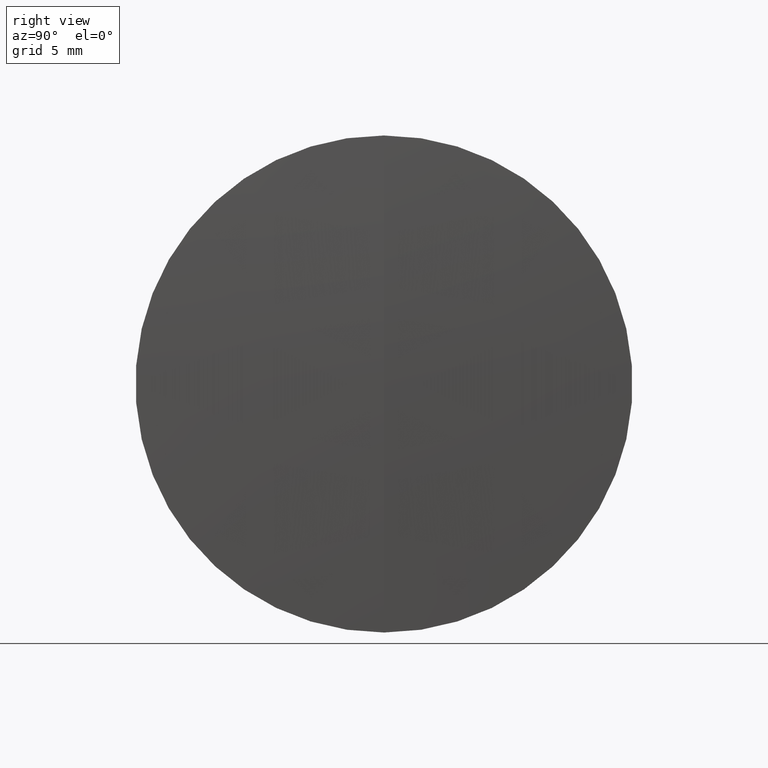
[diagram: clean part render]
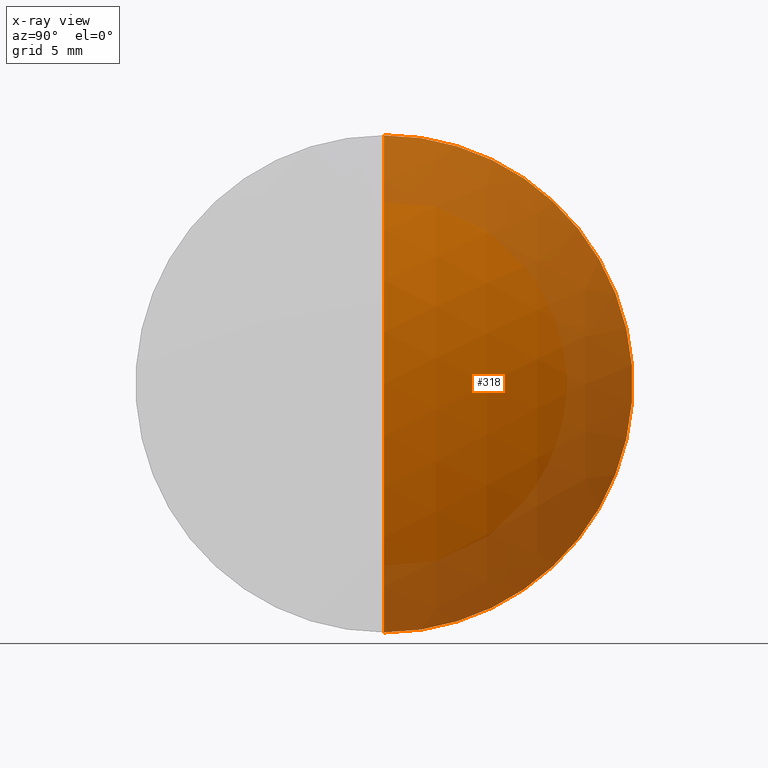
[diagram: x-ray — body ghosted, one internal face saturated and labeled with its STEP entity id]
A machine part, right view, then the same camera in x-ray: the body is ghosted and one INTERNAL B-rep face — a face not visible from any outside direction — is saturated and labeled: STEP entity #318.
In plain terms, the highlighted spherical surface has radius 25.9 mm.
Its self-contained STEP definition (entity closure, byte-faithful):
#3 = DIRECTION ( 'NONE',  ( 0.0000000000000000000, 0.0000000000000000000, 1.000000000000000000 ) ) ;
#18 = FACE_OUTER_BOUND ( 'NONE', #159, .T. ) ;
#30 = VERTEX_POINT ( 'NONE', #227 ) ;
#33 = CIRCLE ( 'NONE', #187, 25.90000000000000900 ) ;
#61 = AXIS2_PLACEMENT_3D ( 'NONE', #114, #271, #301 ) ;
#68 = CARTESIAN_POINT ( 'NONE',  ( 211.0958458084194300, 0.0000000000000000000, -3.185954776904472300E-015 ) ) ;
#75 = CIRCLE ( 'NONE', #293, 12.69999999999999600 ) ;
#82 = EDGE_CURVE ( 'NONE', #169, #346, #33, .T. ) ;
#91 = CARTESIAN_POINT ( 'NONE',  ( 211.0958458084194300, 0.0000000000000000000, -3.185954776904472300E-015 ) ) ;
#110 = CIRCLE ( 'NONE', #61, 25.90000000000000900 ) ;
#114 = CARTESIAN_POINT ( 'NONE',  ( 211.0958458084194300, 0.0000000000000000000, -3.185954776904472300E-015 ) ) ;
#122 = ORIENTED_EDGE ( 'NONE', *, *, #179, .F. ) ;
#155 = EDGE_CURVE ( 'NONE', #30, #346, #75, .T. ) ;
#159 = EDGE_LOOP ( 'NONE', ( #122, #264, #253 ) ) ;
#169 = VERTEX_POINT ( 'NONE', #280 ) ;
#179 = EDGE_CURVE ( 'NONE', #169, #30, #110, .T. ) ;
#187 = AXIS2_PLACEMENT_3D ( 'NONE', #68, #258, #251 ) ;
#197 = CARTESIAN_POINT ( 'NONE',  ( 233.6683955093282600, 0.0000000000000000000, 0.0000000000000000000 ) ) ;
#200 = SPHERICAL_SURFACE ( 'NONE', #206, 25.90000000000000900 ) ;
#206 = AXIS2_PLACEMENT_3D ( 'NONE', #91, #325, #3 ) ;
#227 = CARTESIAN_POINT ( 'NONE',  ( 233.6683955093282600, 0.0000000000000000000, 12.69999999999999600 ) ) ;
#251 = DIRECTION ( 'NONE',  ( 0.0000000000000000000, -1.224646799147353200E-016, 1.000000000000000000 ) ) ;
#253 = ORIENTED_EDGE ( 'NONE', *, *, #155, .F. ) ;
#258 = DIRECTION ( 'NONE',  ( -0.0000000000000000000, 1.000000000000000000, 1.224646799147353200E-016 ) ) ;
#264 = ORIENTED_EDGE ( 'NONE', *, *, #82, .T. ) ;
#271 = DIRECTION ( 'NONE',  ( 0.0000000000000000000, -1.000000000000000000, 0.0000000000000000000 ) ) ;
#273 = DIRECTION ( 'NONE',  ( 0.0000000000000000000, 0.0000000000000000000, 1.000000000000000000 ) ) ;
#280 = CARTESIAN_POINT ( 'NONE',  ( 236.9958458084194300, 0.0000000000000000000, -1.600037172008649500E-015 ) ) ;
#285 = CARTESIAN_POINT ( 'NONE',  ( 233.6683955093282600, 1.555301434917138000E-015, -12.69999999999999600 ) ) ;
#293 = AXIS2_PLACEMENT_3D ( 'NONE', #197, #306, #273 ) ;
#301 = DIRECTION ( 'NONE',  ( 0.0000000000000000000, 0.0000000000000000000, -1.000000000000000000 ) ) ;
#306 = DIRECTION ( 'NONE',  ( -1.000000000000000000, -0.0000000000000000000, -0.0000000000000000000 ) ) ;
#318 = ADVANCED_FACE ( 'NONE', ( #18 ), #200, .T. ) ;
#325 = DIRECTION ( 'NONE',  ( 0.0000000000000000000, 1.000000000000000000, 0.0000000000000000000 ) ) ;
#346 = VERTEX_POINT ( 'NONE', #285 ) ;